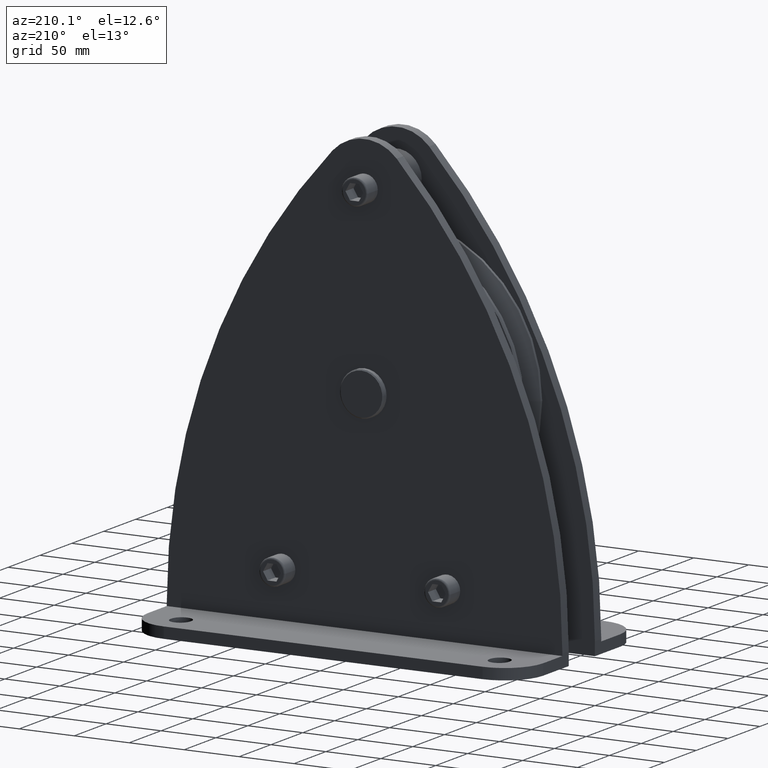
[diagram: clean part render]
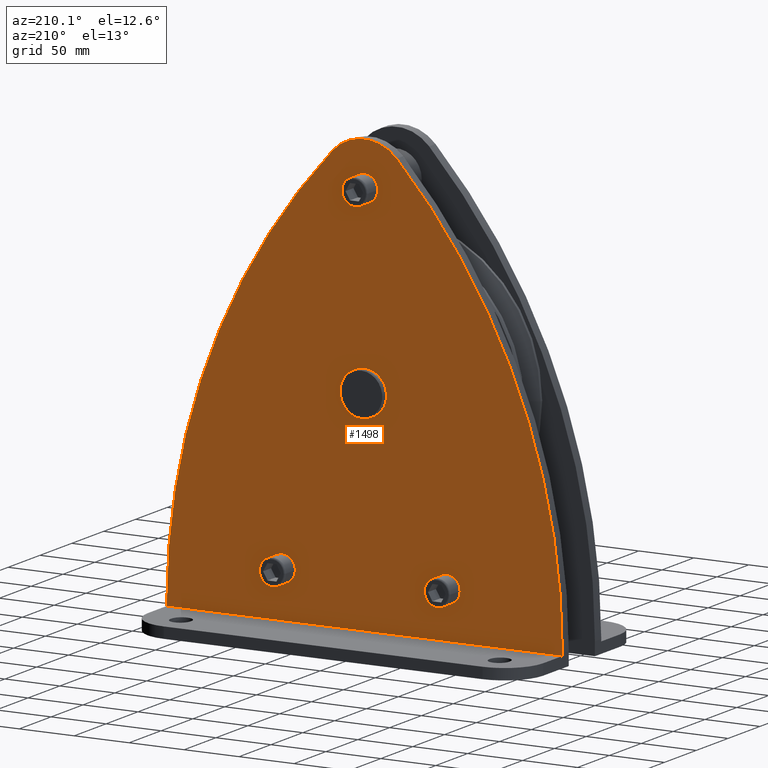
[diagram: same view with one face highlighted and labeled with its STEP entity id]
A machine part, auxiliary view. The second image highlights one B-rep face of the part: STEP entity #1498.
In plain terms, the highlighted planar face has unit normal (0, 1, 0).
Its self-contained STEP definition (entity closure, byte-faithful):
#1498=ADVANCED_FACE('',(#3272,#3273,#3274,#3275,#3276),#3277,.T.);
#3272=FACE_BOUND('',#5344,.T.);
#3273=FACE_BOUND('',#5345,.T.);
#3274=FACE_BOUND('',#5346,.T.);
#3275=FACE_BOUND('',#5347,.T.);
#3276=FACE_OUTER_BOUND('',#5348,.T.);
#3277=PLANE('',#5349);
#5344=EDGE_LOOP('',(#10070,#10071));
#5345=EDGE_LOOP('',(#10072,#10073));
#5346=EDGE_LOOP('',(#10074,#10075));
#5347=EDGE_LOOP('',(#10076,#10077,#10078));
#5348=EDGE_LOOP('',(#10079,#10080,#10081,#10082,#10083,#10084));
#5349=AXIS2_PLACEMENT_3D('',#10085,#10086,#10087);
#10070=ORIENTED_EDGE('',*,*,#12447,.T.);
#10071=ORIENTED_EDGE('',*,*,#14065,.T.);
#10072=ORIENTED_EDGE('',*,*,#12848,.T.);
#10073=ORIENTED_EDGE('',*,*,#14063,.T.);
#10074=ORIENTED_EDGE('',*,*,#12456,.T.);
#10075=ORIENTED_EDGE('',*,*,#14066,.T.);
#10076=ORIENTED_EDGE('',*,*,#12496,.T.);
#10077=ORIENTED_EDGE('',*,*,#14067,.T.);
#10078=ORIENTED_EDGE('',*,*,#12497,.T.);
#10079=ORIENTED_EDGE('',*,*,#14068,.T.);
#10080=ORIENTED_EDGE('',*,*,#14069,.F.);
#10081=ORIENTED_EDGE('',*,*,#14070,.F.);
#10082=ORIENTED_EDGE('',*,*,#14071,.F.);
#10083=ORIENTED_EDGE('',*,*,#14072,.F.);
#10084=ORIENTED_EDGE('',*,*,#14073,.F.);
#10085=CARTESIAN_POINT('',(-1.05537800720867E-012,30.5,-43.4930480133687));
#10086=DIRECTION('',(0.0,1.0,0.0));
#10087=DIRECTION('',(-1.0,0.0,0.0));
#12447=EDGE_CURVE('',#14975,#14977,#14979,.T.);
#12456=EDGE_CURVE('',#14990,#14992,#14994,.T.);
#12496=EDGE_CURVE('',#15062,#15059,#15063,.T.);
#12497=EDGE_CURVE('',#15064,#15062,#15065,.T.);
#12848=EDGE_CURVE('',#15644,#15648,#15650,.T.);
#14063=EDGE_CURVE('',#15648,#15644,#17458,.T.);
#14065=EDGE_CURVE('',#14977,#14975,#17460,.T.);
#14066=EDGE_CURVE('',#14992,#14990,#17461,.T.);
#14067=EDGE_CURVE('',#15059,#15064,#17462,.T.);
#14068=EDGE_CURVE('',#17463,#17464,#17465,.T.);
#14069=EDGE_CURVE('',#17466,#17464,#17467,.T.);
#14070=EDGE_CURVE('',#17468,#17466,#17469,.T.);
#14071=EDGE_CURVE('',#17470,#17468,#17471,.T.);
#14072=EDGE_CURVE('',#17472,#17470,#17473,.T.);
#14073=EDGE_CURVE('',#17463,#17472,#17474,.T.);
#14975=VERTEX_POINT('',#20118);
#14977=VERTEX_POINT('',#20121);
#14979=CIRCLE('',#20124,12.0);
#14990=VERTEX_POINT('',#20135);
#14992=VERTEX_POINT('',#20138);
#14994=CIRCLE('',#20141,12.0);
#15059=VERTEX_POINT('',#20216);
#15062=VERTEX_POINT('',#20220);
#15063=CIRCLE('',#20221,20.0);
#15064=VERTEX_POINT('',#20222);
#15065=CIRCLE('',#20223,20.0);
#15644=VERTEX_POINT('',#23156);
#15648=VERTEX_POINT('',#23161);
#15650=CIRCLE('',#23164,12.0);
#17458=CIRCLE('',#25627,12.0);
#17460=CIRCLE('',#25629,12.0);
#17461=CIRCLE('',#25630,12.0);
#17462=CIRCLE('',#25631,20.0);
#17463=VERTEX_POINT('',#25632);
#17464=VERTEX_POINT('',#25633);
#17465=LINE('',#25634,#25635);
#17466=VERTEX_POINT('',#25636);
#17467=LINE('',#25637,#25638);
#17468=VERTEX_POINT('',#25639);
#17469=CIRCLE('',#25640,560.0000000403);
#17470=VERTEX_POINT('',#25641);
#17471=CIRCLE('',#25642,39.999999989);
#17472=VERTEX_POINT('',#25643);
#17473=CIRCLE('',#25644,560.0000000403);
#17474=LINE('',#25645,#25646);
#20118=CARTESIAN_POINT('',(-63.0,30.5,-150.0));
#20121=CARTESIAN_POINT('',(-87.0,30.5,-150.0));
#20124=AXIS2_PLACEMENT_3D('',#28306,#28307,#28308);
#20135=CARTESIAN_POINT('',(12.0,30.5,165.0));
#20138=CARTESIAN_POINT('',(-12.0,30.5,165.0));
#20141=AXIS2_PLACEMENT_3D('',#28323,#28324,#28325);
#20216=CARTESIAN_POINT('',(2.44929359829471E-015,30.5,-20.0));
#20220=CARTESIAN_POINT('',(-20.0,30.5,0.0));
#20221=AXIS2_PLACEMENT_3D('',#28394,#28395,#28396);
#20222=CARTESIAN_POINT('',(-2.44929359829471E-015,30.5,20.0));
#20223=AXIS2_PLACEMENT_3D('',#28397,#28398,#28399);
#23156=CARTESIAN_POINT('',(87.0,30.5,-150.0));
#23161=CARTESIAN_POINT('',(63.0,30.5,-150.0));
#23164=AXIS2_PLACEMENT_3D('',#28872,#28873,#28874);
#25627=AXIS2_PLACEMENT_3D('',#30238,#30239,#30240);
#25629=AXIS2_PLACEMENT_3D('',#30241,#30242,#30243);
#25630=AXIS2_PLACEMENT_3D('',#30244,#30245,#30246);
#25631=AXIS2_PLACEMENT_3D('',#30247,#30248,#30249);
#25632=CARTESIAN_POINT('',(180.0,30.5,-192.0));
#25633=CARTESIAN_POINT('',(-180.0,30.5,-192.0));
#25634=CARTESIAN_POINT('',(-5.40012479177676E-013,30.5,-192.0));
#25635=VECTOR('',#30250,1.0);
#25636=CARTESIAN_POINT('',(-180.0,30.5,-190.000000000384));
#25637=CARTESIAN_POINT('',(-180.0,30.5,-202.0));
#25638=VECTOR('',#30251,1.0);
#25639=CARTESIAN_POINT('',(-29.2307692301696,30.5,192.269770599819));
#25640=AXIS2_PLACEMENT_3D('',#30252,#30253,#30254);
#25641=CARTESIAN_POINT('',(29.2307692300395,30.5,192.269770599973));
#25642=AXIS2_PLACEMENT_3D('',#30255,#30256,#30257);
#25643=CARTESIAN_POINT('',(179.999999999999,30.5,-190.000000000384));
#25644=AXIS2_PLACEMENT_3D('',#30258,#30259,#30260);
#25645=CARTESIAN_POINT('',(180.0,30.5,-190.0));
#25646=VECTOR('',#30261,1.0);
#28306=CARTESIAN_POINT('',(-75.0,30.5,-150.0));
#28307=DIRECTION('',(0.0,-1.0,0.0));
#28308=DIRECTION('',(1.0,0.0,0.0));
#28323=CARTESIAN_POINT('',(0.0,30.5,165.0));
#28324=DIRECTION('',(0.0,-1.0,0.0));
#28325=DIRECTION('',(1.0,0.0,0.0));
#28394=CARTESIAN_POINT('',(0.0,30.5,0.0));
#28395=DIRECTION('',(-0.0,-1.0,-0.0));
#28396=DIRECTION('',(-1.0,0.0,0.0));
#28397=CARTESIAN_POINT('',(0.0,30.5,0.0));
#28398=DIRECTION('',(-0.0,-1.0,-0.0));
#28399=DIRECTION('',(-1.0,0.0,0.0));
#28872=CARTESIAN_POINT('',(75.0,30.5,-150.0));
#28873=DIRECTION('',(0.0,-1.0,0.0));
#28874=DIRECTION('',(1.0,0.0,0.0));
#30238=CARTESIAN_POINT('',(75.0,30.5,-150.0));
#30239=DIRECTION('',(0.0,-1.0,0.0));
#30240=DIRECTION('',(1.0,0.0,0.0));
#30241=CARTESIAN_POINT('',(-75.0,30.5,-150.0));
#30242=DIRECTION('',(0.0,-1.0,0.0));
#30243=DIRECTION('',(1.0,0.0,0.0));
#30244=CARTESIAN_POINT('',(0.0,30.5,165.0));
#30245=DIRECTION('',(0.0,-1.0,0.0));
#30246=DIRECTION('',(1.0,0.0,0.0));
#30247=CARTESIAN_POINT('',(0.0,30.5,0.0));
#30248=DIRECTION('',(-0.0,-1.0,-0.0));
#30249=DIRECTION('',(-1.0,0.0,0.0));
#30250=DIRECTION('',(-1.0,0.0,0.0));
#30251=DIRECTION('',(0.0,-0.0,-1.0));
#30252=CARTESIAN_POINT('',(380.0000000403,30.5,-190.000000017));
#30253=DIRECTION('',(0.0,-1.0,0.0));
#30254=DIRECTION('',(-1.0,0.0,2.96706912985774E-011));
#30255=CARTESIAN_POINT('',(-1.77635683940025E-014,30.5,164.964787001));
#30256=DIRECTION('',(0.0,-1.0,0.0));
#30257=DIRECTION('',(-0.730769230951949,0.0,0.682624590162042));
#30258=CARTESIAN_POINT('',(-380.0000000403,30.5,-190.000000016999));
#30259=DIRECTION('',(0.0,-1.0,0.0));
#30260=DIRECTION('',(0.730769230787535,0.0,0.682624590338052));
#30261=DIRECTION('',(0.0,0.0,1.0));